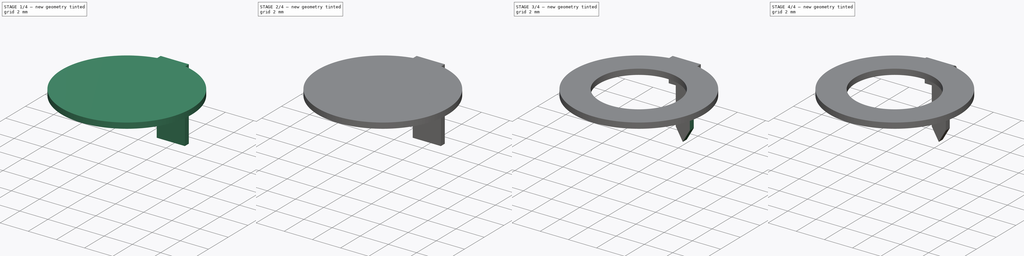
[diagram: build sequence overview — one tinted view per stage of 4, left to right]
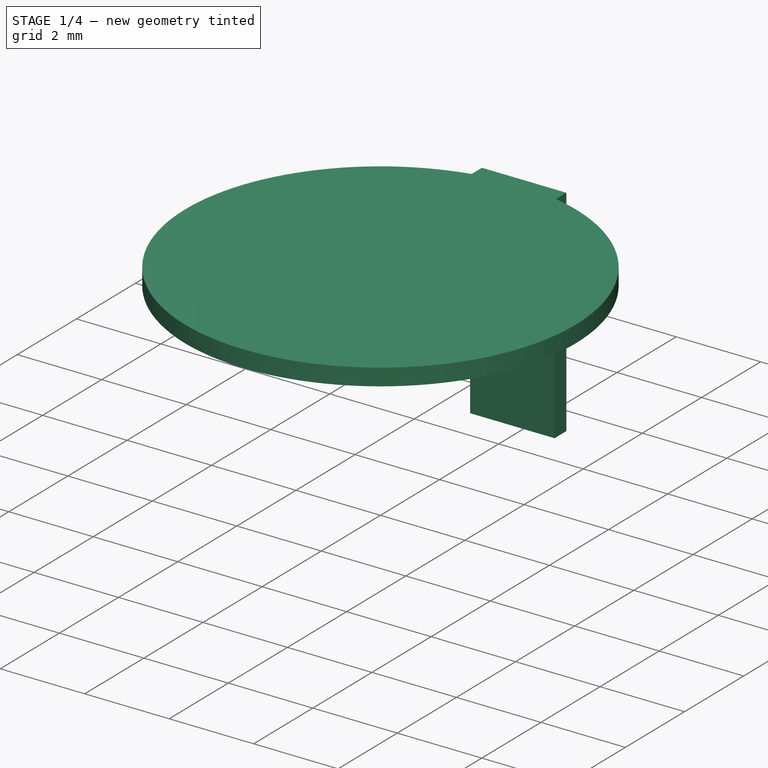
[diagram: stage 1 of 4 — iso view after this stage's code; geometry added in this stage tinted green]
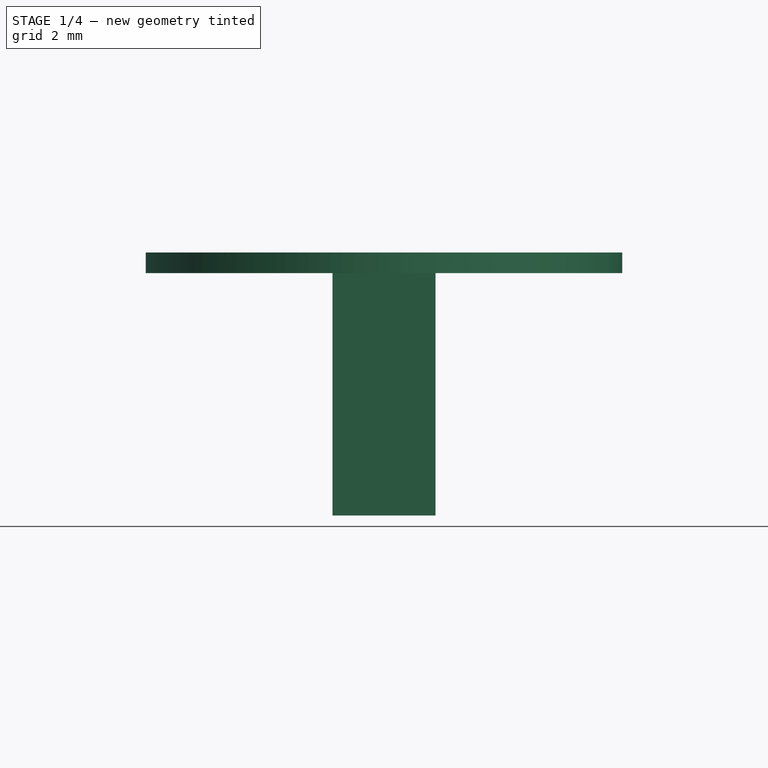
[diagram: stage 1 of 4 — front view after this stage's code; geometry added in this stage tinted green]
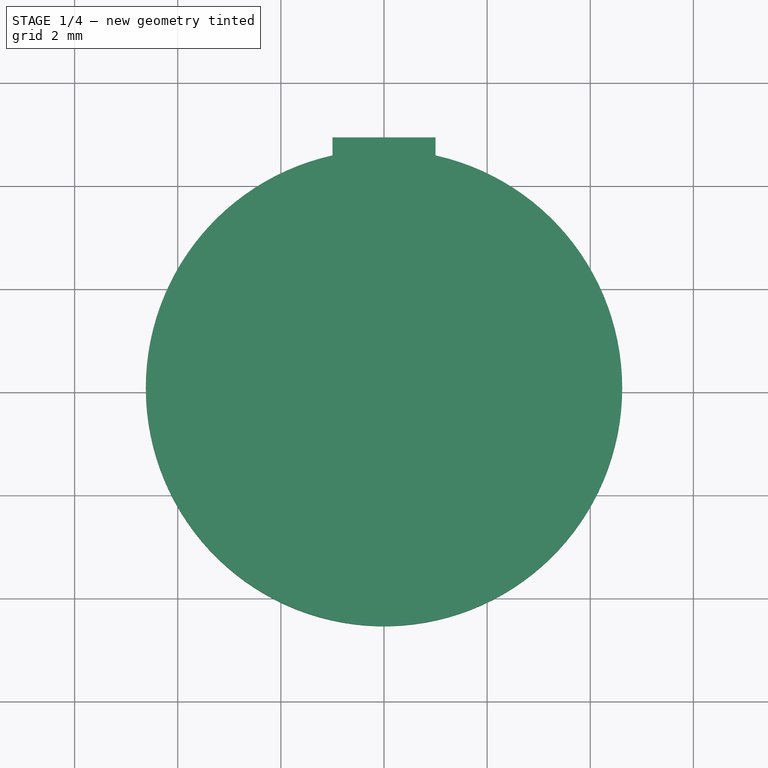
[diagram: stage 1 of 4 — top view after this stage's code; geometry added in this stage tinted green]
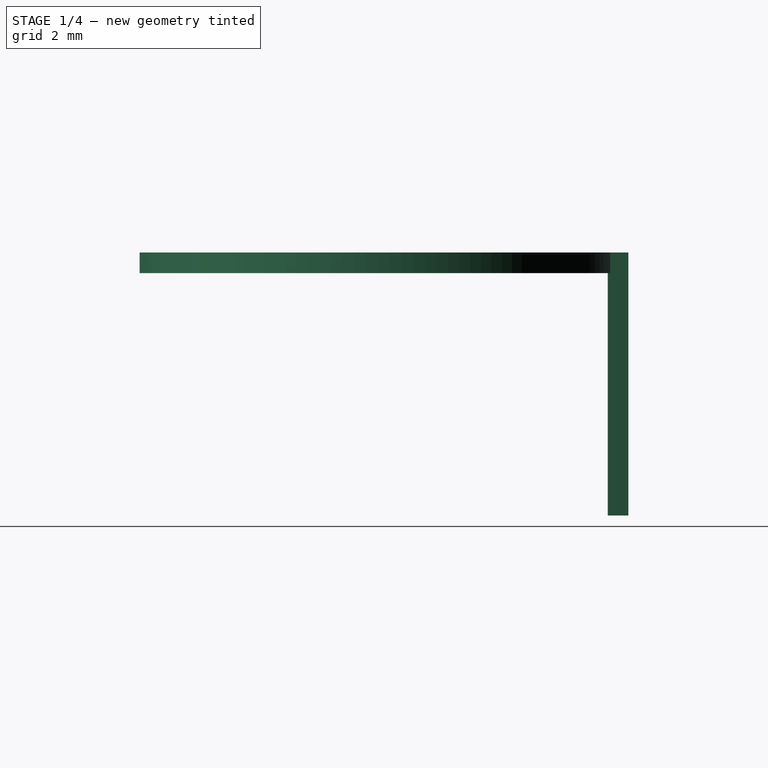
[diagram: stage 1 of 4 — right view after this stage's code; geometry added in this stage tinted green]
FCSTD DOCUMENT  (FreeCAD 0.16R6703 (Git))
Label: Wiper
License: CreativeCommons Attribution-ShareAlike
LicenseURL: http://creativecommons.org/licenses/by-sa/4.0/
objects: Sketcher::SketchObject×3, Part::Cylinder×2, Part::Fillet×2, Part::Sweep×1, Part::MultiFuse×1, Part::Cut×1, PartDesign::Pocket×1, Part::MultiCommon×1
note: 13 computed .brp shape members not serialized (recipe doc carries the construction recipe); baked Part::Feature solids carry a one-line shape summary decoded from their .brp

FEATURE [Part::Cylinder] Cylinder
  Angle = 360
  Height = 0.4
  Placement = pos=(0,0,-0.2) rot=(0,0,1;0rad)
  Radius = 4.62
FEATURE [Sketcher::SketchObject] Sketch  label="Sketch_section"
  Placement = pos=(0,0,0) rot=(1,0,0;1.5708rad)
  sketch-geometry (4):
    g0: LineSegment StartX=-1 StartY=0.2 StartZ=0 EndX=1 EndY=0.2 EndZ=0
    g1: LineSegment StartX=1 StartY=0.2 StartZ=0 EndX=1 EndY=-0.2 EndZ=0
    g2: LineSegment StartX=1 StartY=-0.2 StartZ=0 EndX=-1 EndY=-0.2 EndZ=0
    g3: LineSegment StartX=-1 StartY=-0.2 StartZ=0 EndX=-1 EndY=0.2 EndZ=0
  constraints (12):
    c: Coincident(g0,g1)
    c: Coincident(g1,g2)
    c: Coincident(g2,g3)
    c: Coincident(g3,g0)
    c: Horizontal(g0)
    c: Horizontal(g2)
    c: Vertical(g1)
    c: Vertical(g3)
    c: DistanceY(g1,g1) = 0.4
    c: Symmetric(g2,g1,g-2)
    c: DistanceX(g0,g0) = 2
    c: Symmetric(g0,g2,g-1)
FEATURE [Sketcher::SketchObject] Sketch001  label="Sketch_trajectory"
  Placement = pos=(0,0,0) rot=(0.57735,0.57735,0.57735;2.0944rad)
  sketch-geometry (2):
    g0: LineSegment StartX=0 StartY=0 StartZ=0 EndX=4.66 EndY=0 EndZ=0
    g1: LineSegment StartX=4.66 StartY=0 StartZ=0 EndX=4.66 EndY=-4.9 EndZ=0
  constraints (6):
    c: Horizontal(g0)
    c: Coincident(g0,g1)
    c: Vertical(g1)
    c: DistanceX(g0,g0) = 4.66
    c: DistanceY(g1,g1) = 4.9
    c: Coincident(g0,g-1)
FEATURE [Part::Sweep] Sweep
  Frenet = false
  Sections = -> [Sketch]
  Solid = true
  Spine = -> Sketch001
  Transition = 1
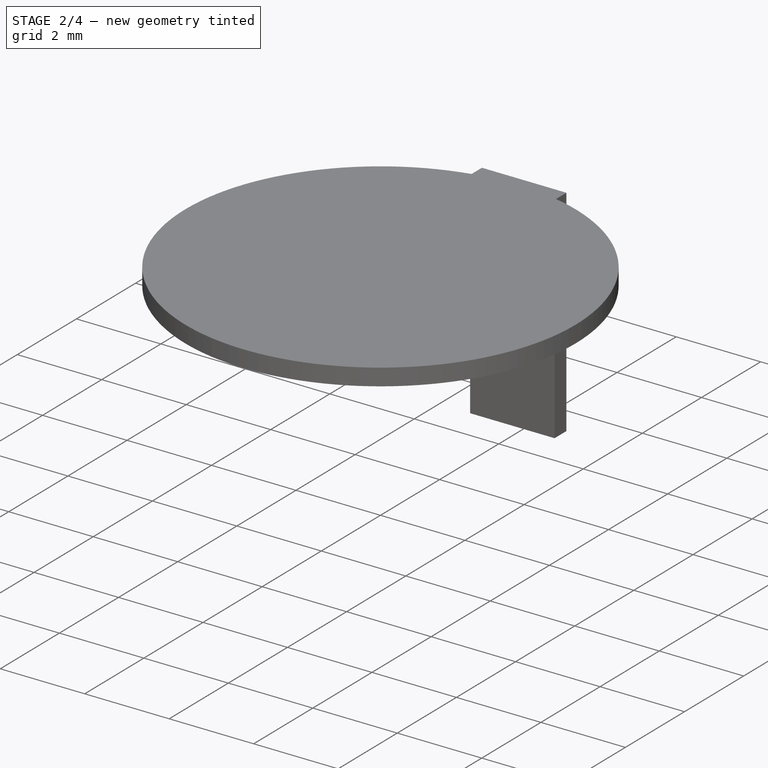
[diagram: stage 2 of 4 — iso view after this stage's code; geometry added in this stage tinted green]
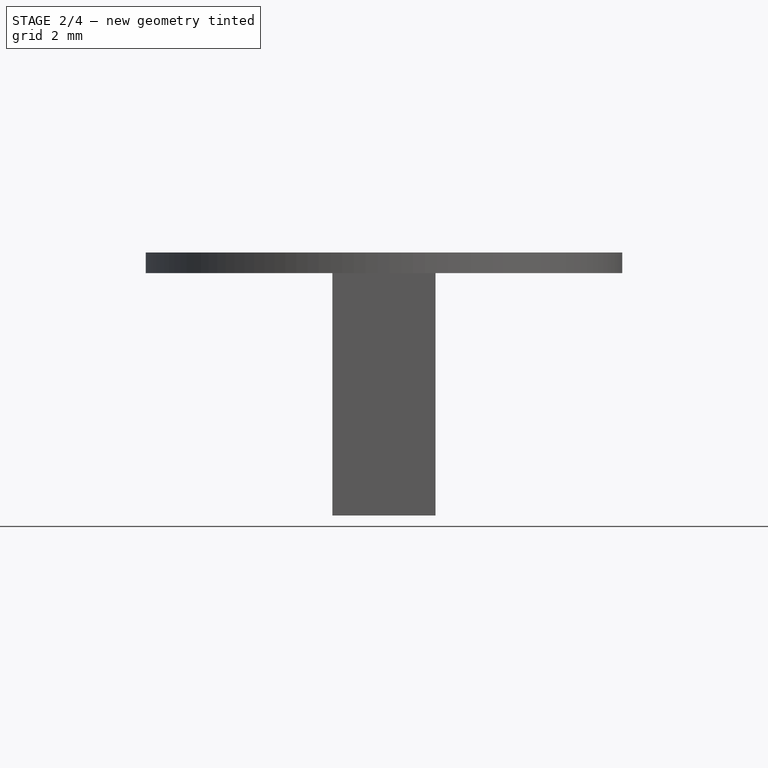
[diagram: stage 2 of 4 — front view after this stage's code; geometry added in this stage tinted green]
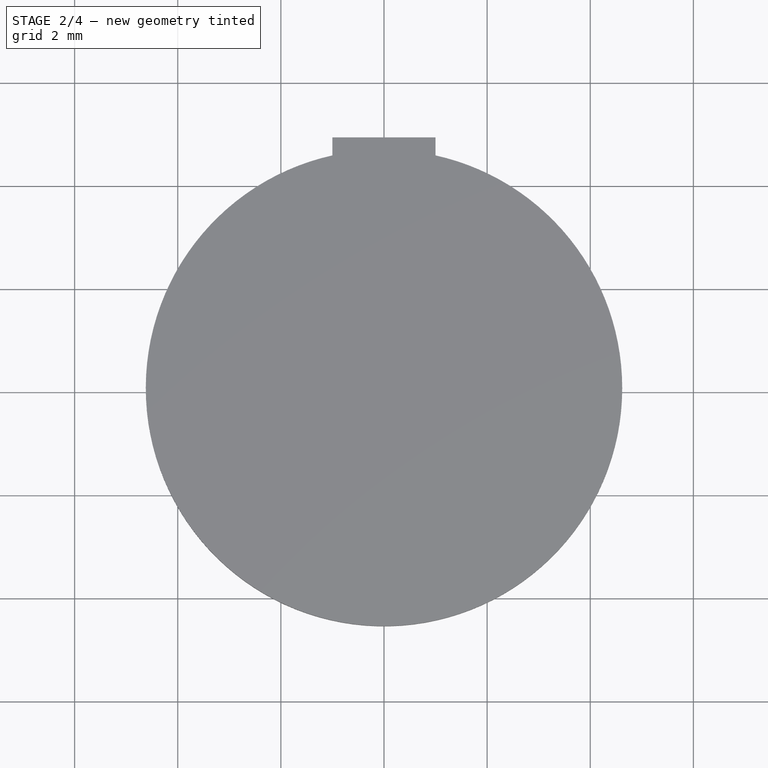
[diagram: stage 2 of 4 — top view after this stage's code; geometry added in this stage tinted green]
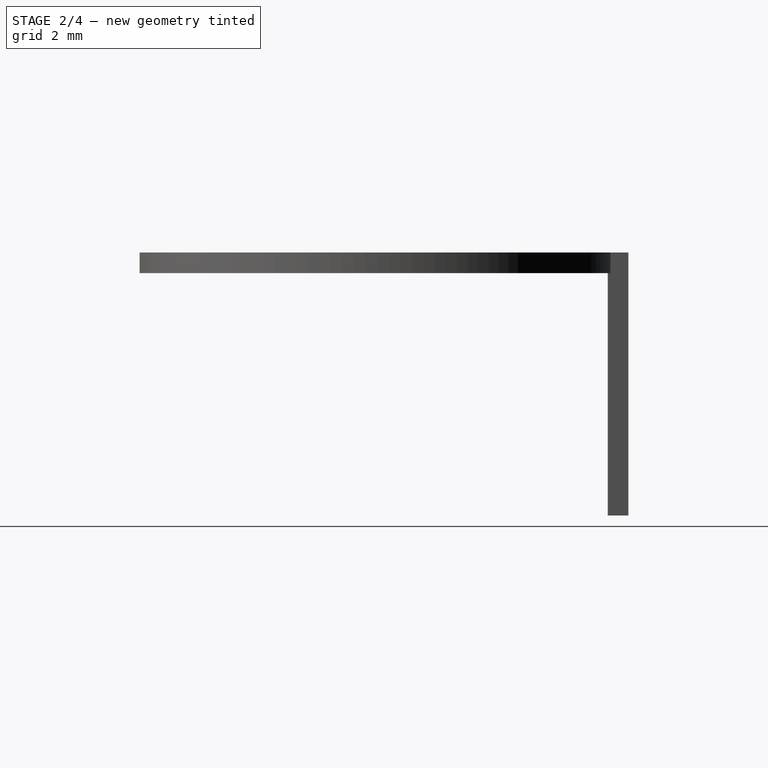
[diagram: stage 2 of 4 — right view after this stage's code; geometry added in this stage tinted green]
FEATURE [Part::Cylinder] Cylinder001
  Angle = 360
  Height = 0.4
  Placement = pos=(0,0,-0.2) rot=(0,0,1;0rad)
  Radius = 2.8
FEATURE [Part::MultiFuse] Fusion
  Shapes = -> [Sweep,Cylinder]
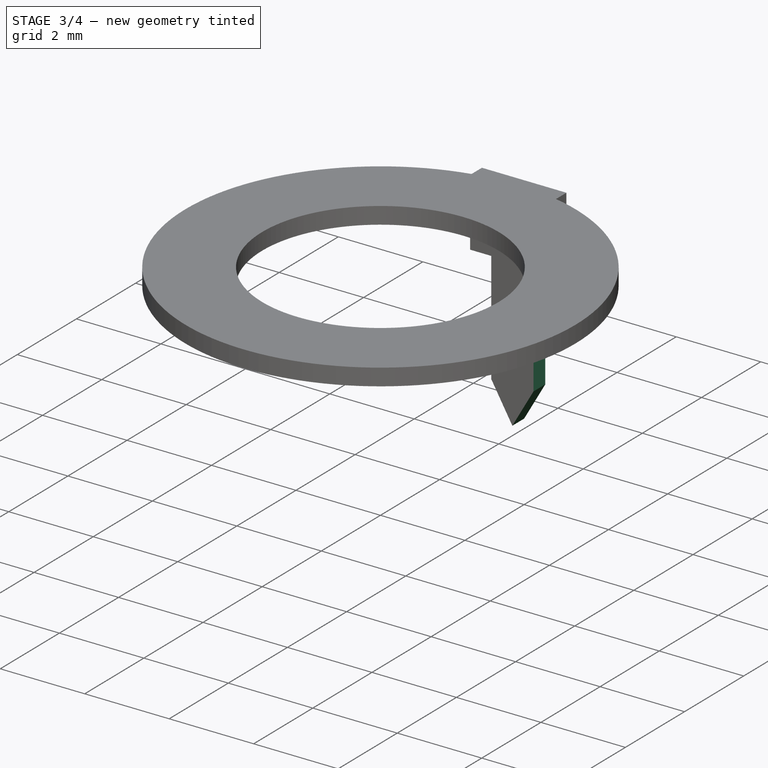
[diagram: stage 3 of 4 — iso view after this stage's code; geometry added in this stage tinted green]
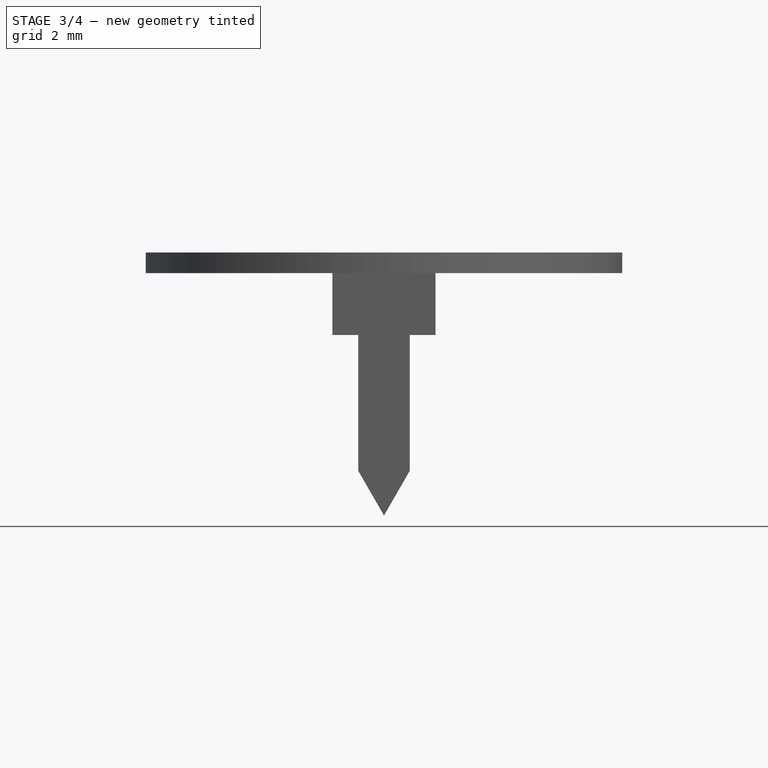
[diagram: stage 3 of 4 — front view after this stage's code; geometry added in this stage tinted green]
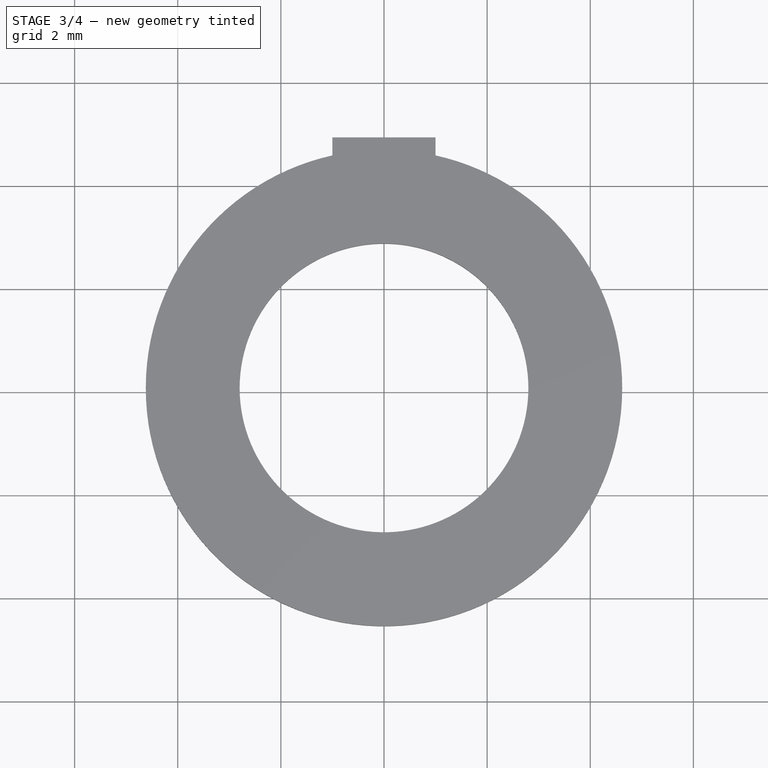
[diagram: stage 3 of 4 — top view after this stage's code; geometry added in this stage tinted green]
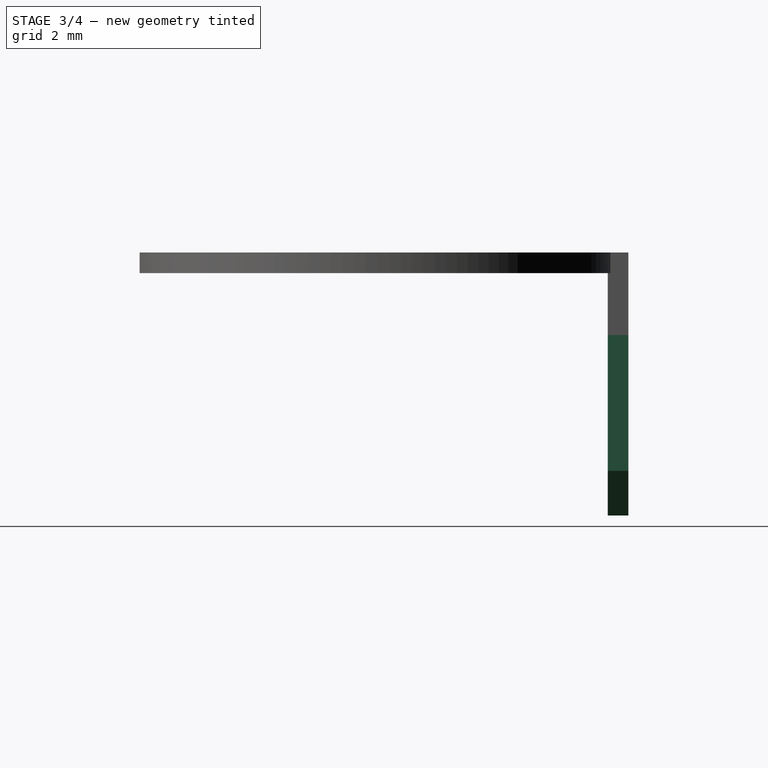
[diagram: stage 3 of 4 — right view after this stage's code; geometry added in this stage tinted green]
FEATURE [Part::Cut] Cut
  Base = -> Fusion
  Tool = -> Cylinder001
FEATURE [Sketcher::SketchObject] Sketch002
  Placement = pos=(0,4.86,0) rot=(0,0.707107,0.707107;3.14159rad)
  Support = -> Cut [Face1]
  sketch-geometry (10):
    g0: LineSegment StartX=0 StartY=-4.9 StartZ=0 EndX=-0.5 EndY=-4.03397 EndZ=0
    g1: LineSegment StartX=0 StartY=-4.9 StartZ=0 EndX=0.5 EndY=-4.03397 EndZ=0
    g2: LineSegment StartX=0.5 StartY=-4.03397 StartZ=0 EndX=0.5 EndY=-1.4 EndZ=0
    g3: LineSegment StartX=0.5 StartY=-1.4 StartZ=0 EndX=1 EndY=-1.4 EndZ=0
    g4: LineSegment StartX=1 StartY=-1.4 StartZ=0 EndX=1 EndY=-4.9 EndZ=0
    g5: LineSegment StartX=1 StartY=-4.9 StartZ=0 EndX=0 EndY=-4.9 EndZ=0
    g6: LineSegment StartX=0 StartY=-4.9 StartZ=0 EndX=-1 EndY=-4.9 EndZ=0
    g7: LineSegment StartX=-1 StartY=-4.9 StartZ=0 EndX=-1 EndY=-1.4 EndZ=0
    g8: LineSegment StartX=-1 StartY=-1.4 StartZ=0 EndX=-0.5 EndY=-1.4 EndZ=0
    g9: LineSegment StartX=-0.5 StartY=-1.4 StartZ=0 EndX=-0.5 EndY=-4.03397 EndZ=0
  constraints (29):
    c: PointOnObject(g0,g-2)
    c: Coincident(g1,g0)
    c: Coincident(g1,g2)
    c: Vertical(g2)
    c: Coincident(g2,g3)
    c: Horizontal(g3)
    c: Coincident(g3,g4)
    c: Vertical(g4)
    c: Coincident(g4,g5)
    c: Coincident(g5,g0)
    c: Horizontal(g5)
    c: Coincident(g5,g6)
    c: Horizontal(g6)
    c: Coincident(g6,g7)
    c: Vertical(g7)
    c: Coincident(g7,g8)
    c: Horizontal(g8)
    c: Coincident(g8,g9)
    c: Coincident(g9,g0)
    c: Vertical(g9)
    c: Equal(g0,g1)
    c: Angle(g1,g0) = 1.0472
    c: DistanceY(g4,g4) = 3.5
    c: Equal(g4,g7)
    c: Equal(g9,g2)
    c: DistanceX(g8,g2) = 1
    c: Symmetric(g6,g4,g-2)
    c: DistanceX(g6,g6) = 1
    c: DistanceY(g4,g-1) = 4.9
FEATURE [PartDesign::Pocket] Pocket
  Length = 5
  Sketch = -> Sketch002
  Type = 0
FEATURE [Part::MultiCommon] Common
  Shapes = -> [Cut,Pocket]
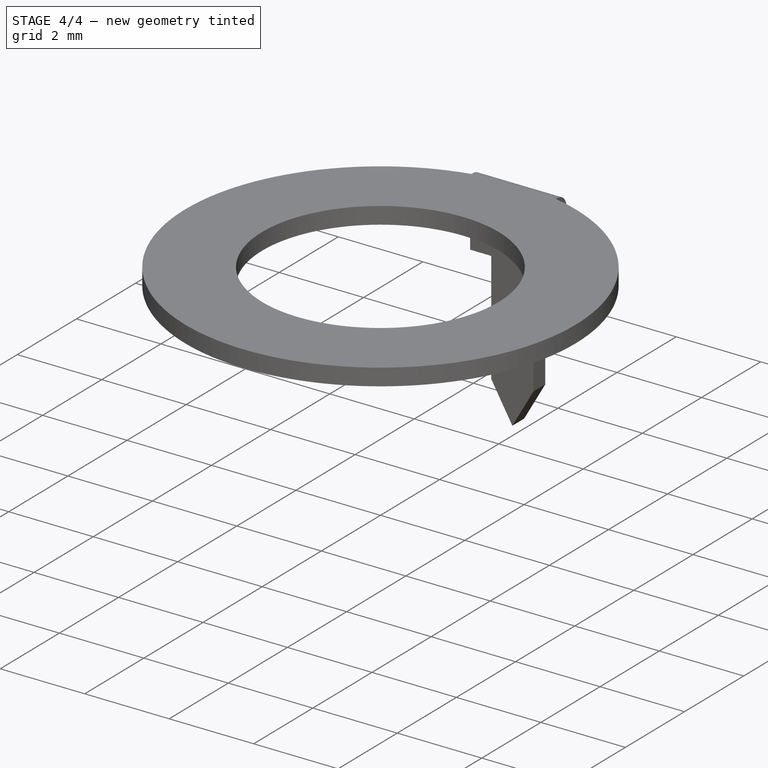
[diagram: stage 4 of 4 — iso view after this stage's code; geometry added in this stage tinted green]
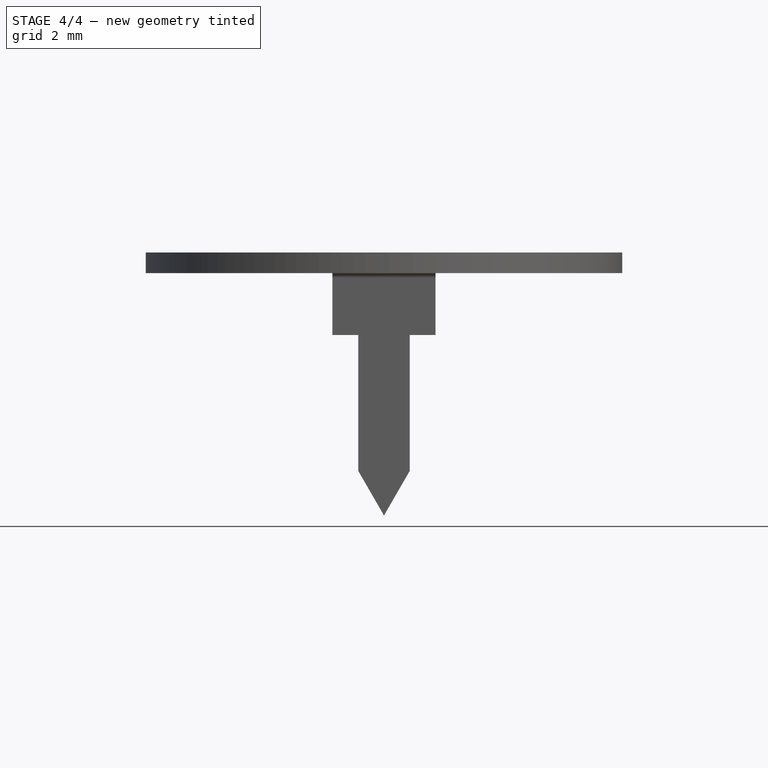
[diagram: stage 4 of 4 — front view after this stage's code; geometry added in this stage tinted green]
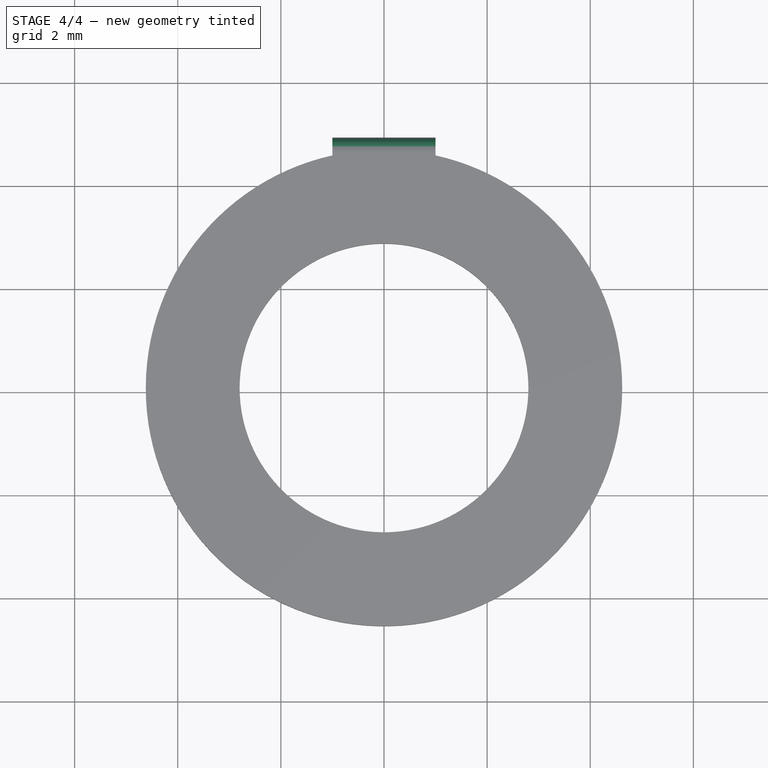
[diagram: stage 4 of 4 — top view after this stage's code; geometry added in this stage tinted green]
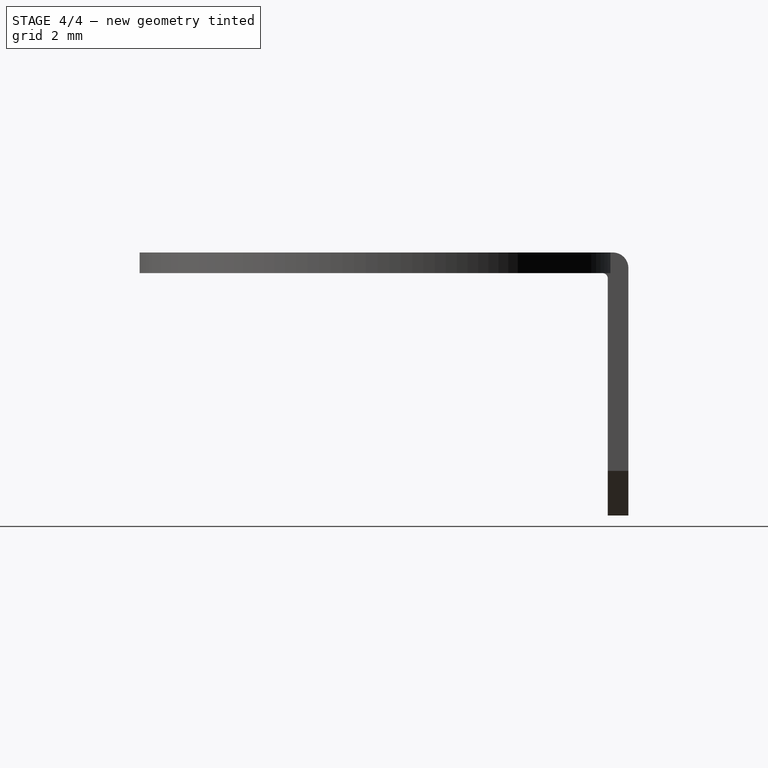
[diagram: stage 4 of 4 — right view after this stage's code; geometry added in this stage tinted green]
FEATURE [Part::Fillet] Fillet
  Base = -> Common
  Edges = 1 edges r=0.3: [Edge2]
FEATURE [Part::Fillet] Fillet001
  Base = -> Fillet
  Edges = 1 edges r=0.1: [Edge37]
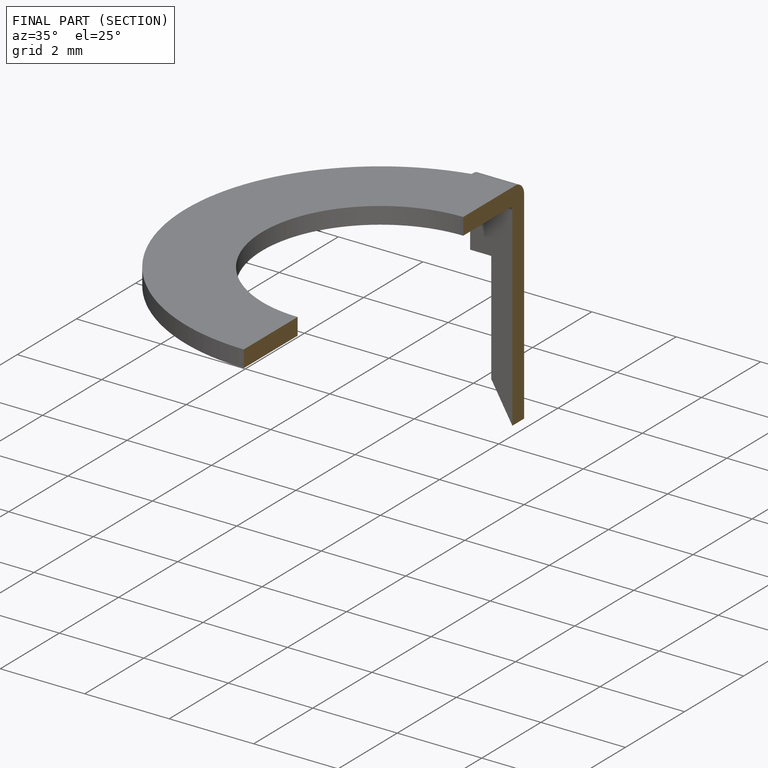
[diagram: finished part — half-section view (interior)]
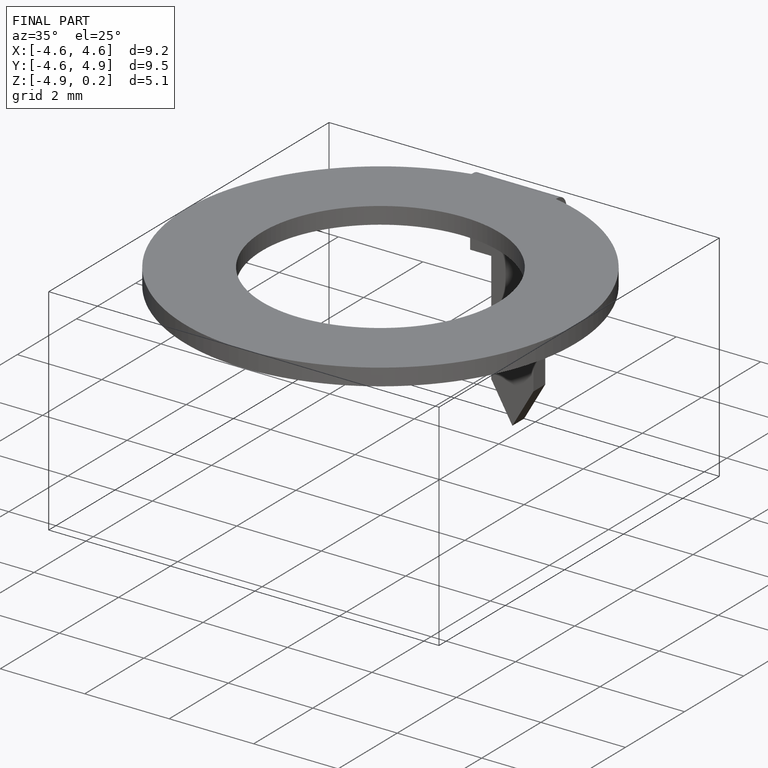
[diagram: finished part — iso view with bounding-box wireframe]
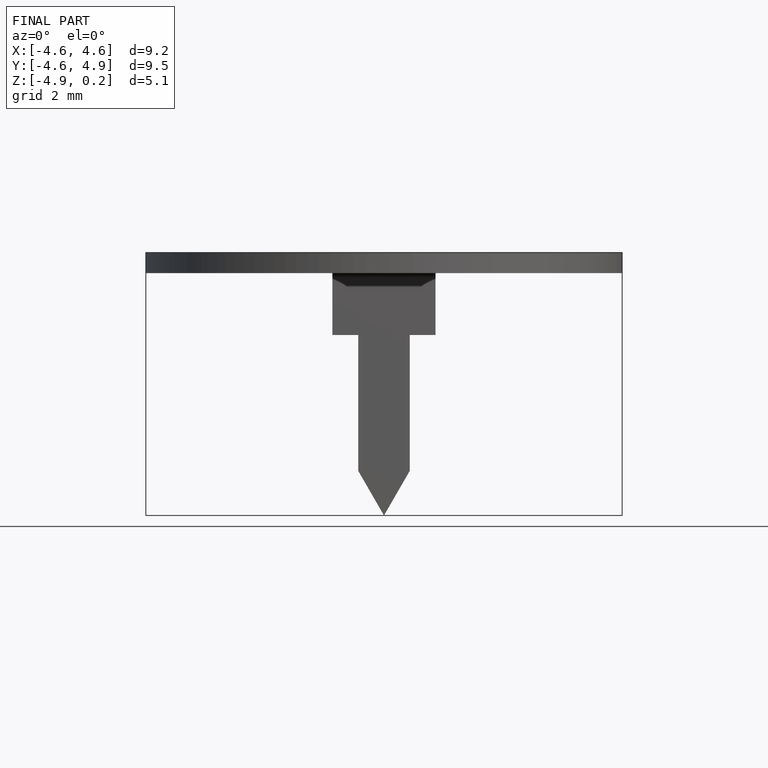
[diagram: finished part — front view with bounding-box wireframe]
